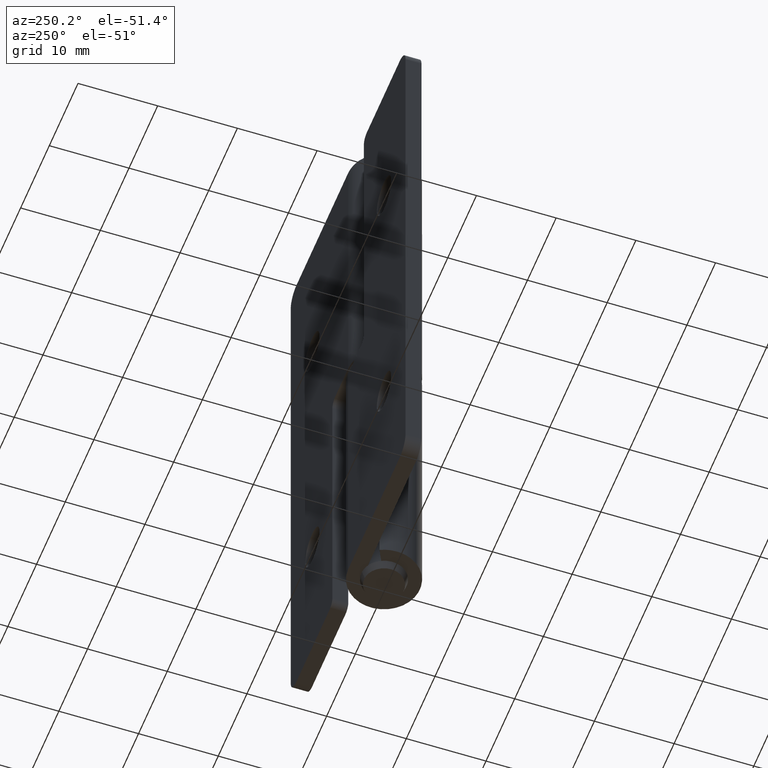
[diagram: clean part render]
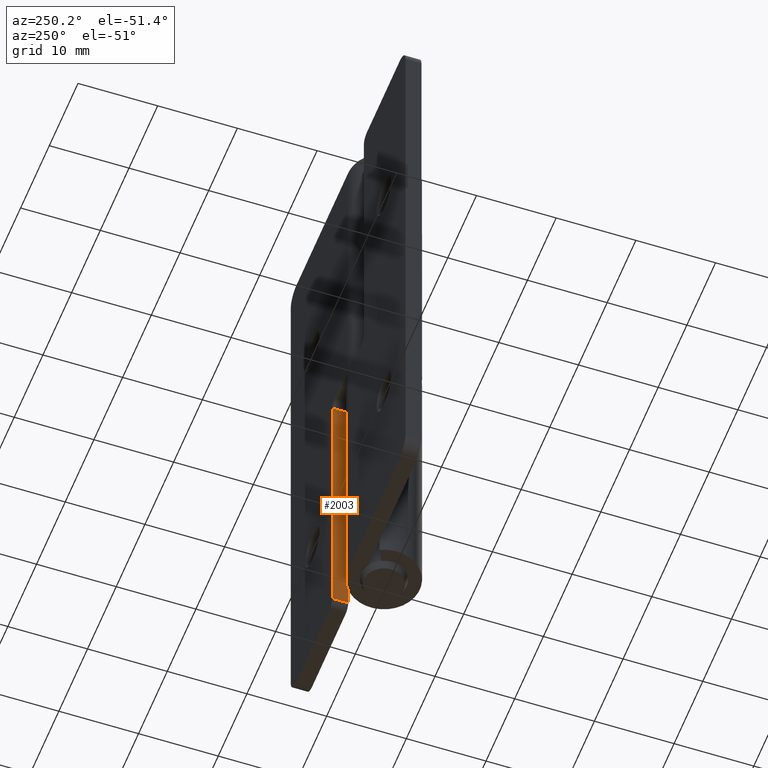
[diagram: same view with one face highlighted and labeled with its STEP entity id]
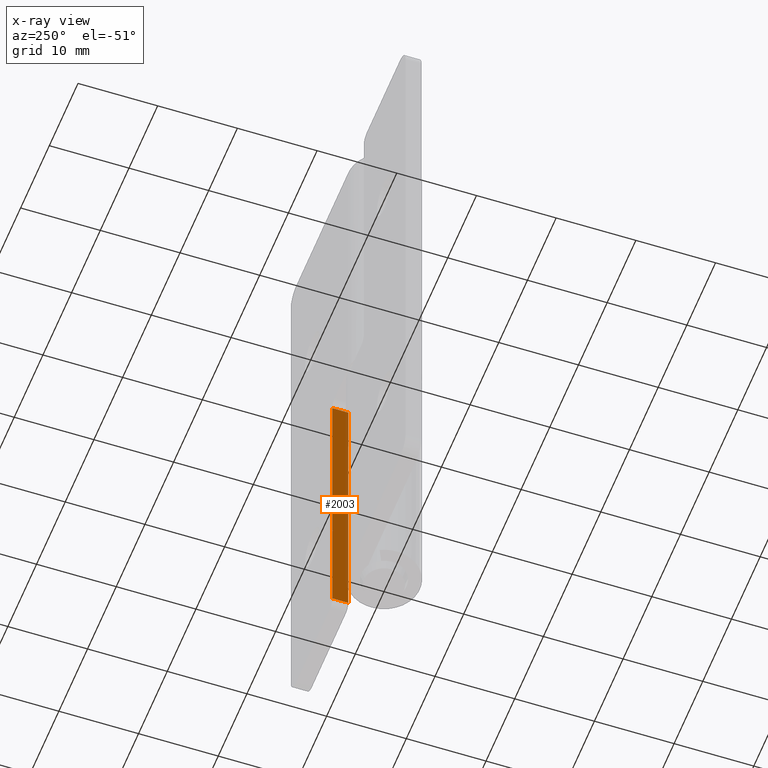
[diagram: x-ray of the same camera — body ghosted, the highlighted face saturated]
A machine part, auxiliary view. The second image highlights one B-rep face of the part: STEP entity #2003.
The next image is the same camera in x-ray: the body ghosted, the highlighted face saturated — about 1% of this face is hidden behind the body in this view.
In plain terms, the highlighted face is a freeform B-spline surface patch.
Its self-contained STEP definition (entity closure, byte-faithful):
#1647=CARTESIAN_POINT('',(5.500000000000000,2.500000000000000,37.0));
#1648=VERTEX_POINT('',#1647);
#1649=CARTESIAN_POINT('',(5.500000000000000,2.500000000000000,1.0));
#1650=VERTEX_POINT('',#1649);
#1651=CARTESIAN_POINT('',(5.500000000000000,2.500000000000000,37.0));
#1652=CARTESIAN_POINT('',(5.500000000000000,2.500000000000000,1.0));
#1653=QUASI_UNIFORM_CURVE('',1,(#1651,#1652),.UNSPECIFIED.,.F.,.U.);
#1654=EDGE_CURVE('',#1648,#1650,#1653,.T.);
#1778=CARTESIAN_POINT('',(5.500000000000000,4.499999999999949,37.0));
#1779=VERTEX_POINT('',#1778);
#1793=CARTESIAN_POINT('',(5.500000000000000,2.500000000000000,37.0));
#1794=CARTESIAN_POINT('',(5.500000000000000,4.499999999999949,37.0));
#1795=QUASI_UNIFORM_CURVE('',1,(#1793,#1794),.UNSPECIFIED.,.F.,.U.);
#1796=EDGE_CURVE('',#1648,#1779,#1795,.T.);
#1816=CARTESIAN_POINT('',(5.500000000000000,4.499999999999949,1.0));
#1817=VERTEX_POINT('',#1816);
#1818=CARTESIAN_POINT('',(5.500000000000000,4.499999999999949,1.0));
#1819=CARTESIAN_POINT('',(5.500000000000000,2.500000000000000,1.0));
#1820=QUASI_UNIFORM_CURVE('',1,(#1818,#1819),.UNSPECIFIED.,.F.,.U.);
#1821=EDGE_CURVE('',#1817,#1650,#1820,.T.);
#1988=CARTESIAN_POINT('',(5.500000000000000,2.400100003876391,-0.798199930225013));
#1989=CARTESIAN_POINT('',(5.500000000000000,2.400100003876391,38.798200895820273));
#1990=CARTESIAN_POINT('',(5.500000000000000,4.599900049767739,-0.798199930225013));
#1991=CARTESIAN_POINT('',(5.500000000000000,4.599900049767739,38.798200895820273));
#1992=B_SPLINE_SURFACE_WITH_KNOTS('',1,1,((#1988,#1990),(#1989,#1991)),.UNSPECIFIED.,.F.,.F.,.U.,(2,2),(2,2),(0.0,39.596400826045283),(0.0,2.199800045891348),.UNSPECIFIED.);
#1993=CARTESIAN_POINT('',(5.500000000000000,4.499999999999949,1.0));
#1994=CARTESIAN_POINT('',(5.500000000000000,4.499999999999949,37.0));
#1995=QUASI_UNIFORM_CURVE('',1,(#1993,#1994),.UNSPECIFIED.,.F.,.U.);
#1996=EDGE_CURVE('',#1817,#1779,#1995,.T.);
#1997=ORIENTED_EDGE('',*,*,#1996,.F.);
#1998=ORIENTED_EDGE('',*,*,#1821,.T.);
#1999=ORIENTED_EDGE('',*,*,#1654,.F.);
#2000=ORIENTED_EDGE('',*,*,#1796,.T.);
#2001=EDGE_LOOP('',(#1997,#1998,#1999,#2000));
#2002=FACE_OUTER_BOUND('',#2001,.T.);
#2003=ADVANCED_FACE('',(#2002),#1992,.T.);